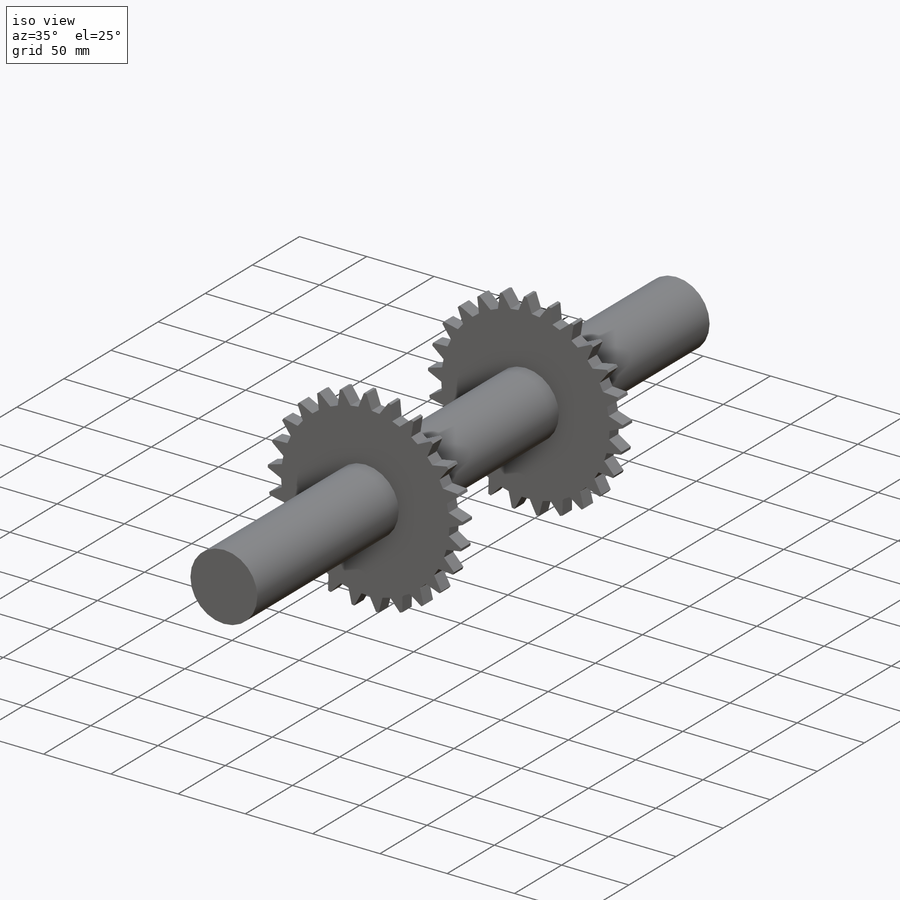
[diagram: iso view]
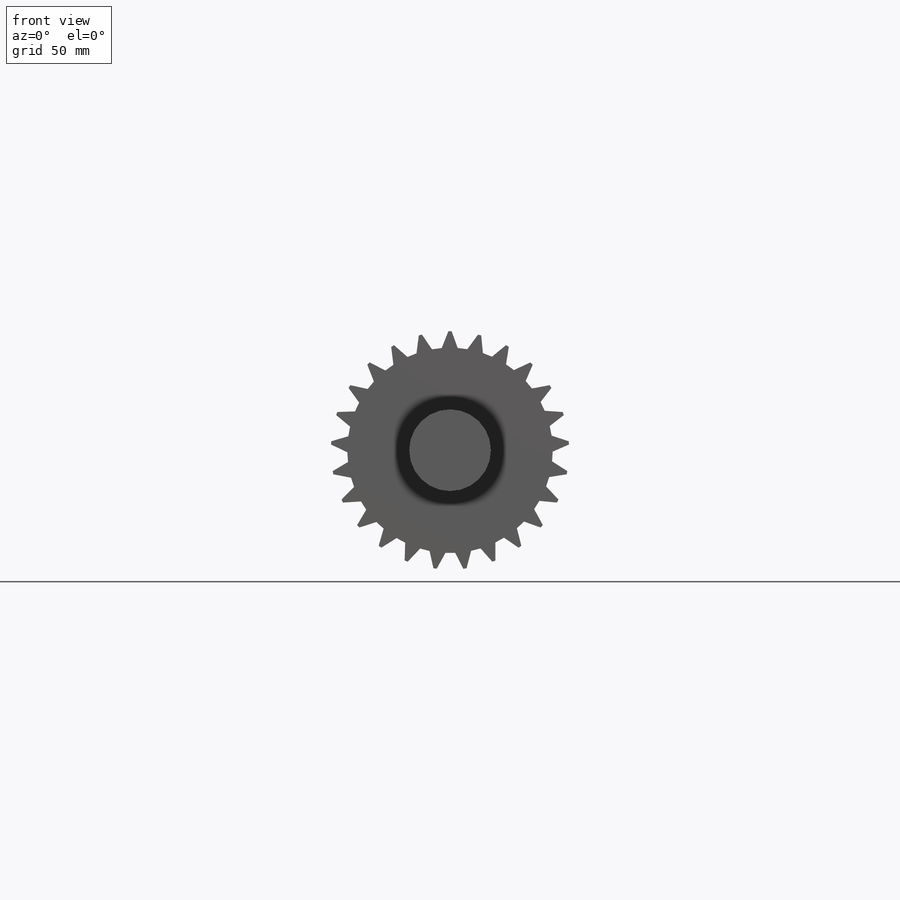
[diagram: front view]
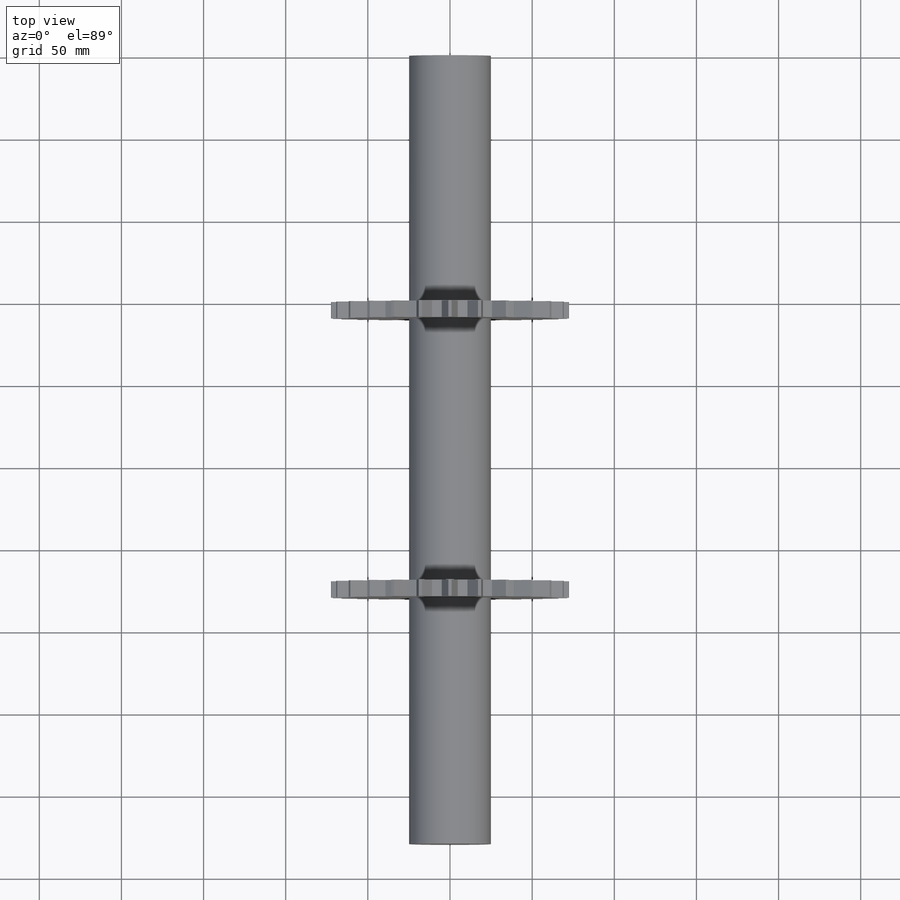
[diagram: top view]
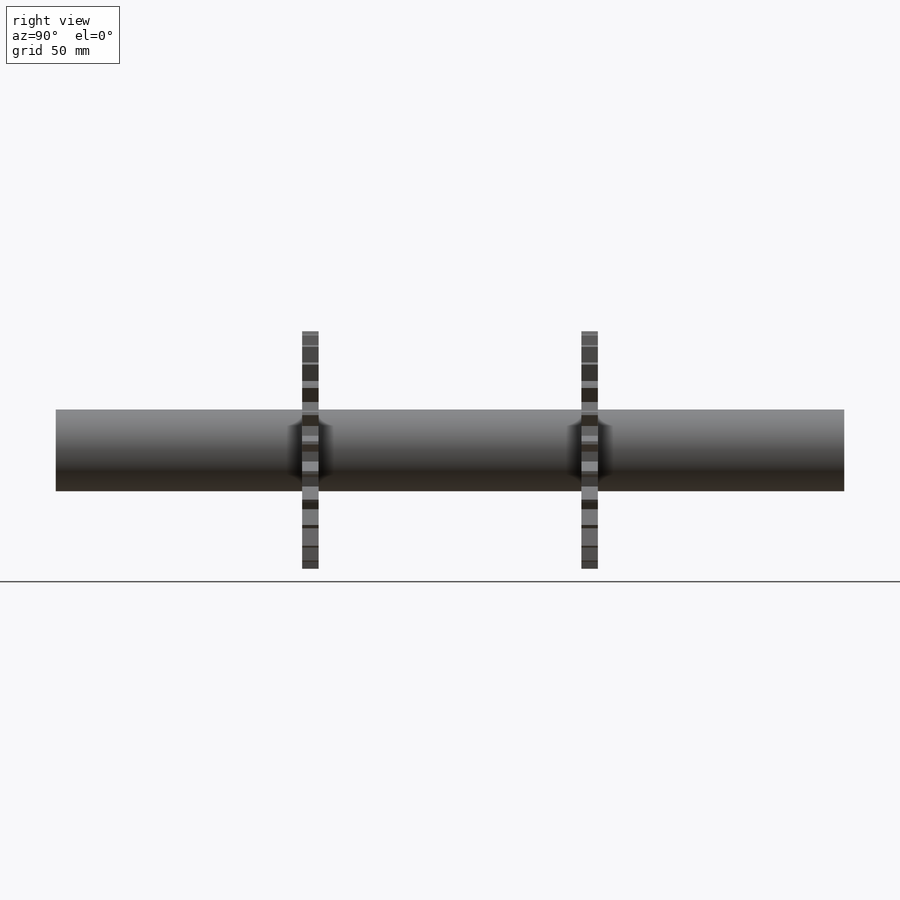
[diagram: right view]
SOLIDWORKS PART (.sldprt)
format: sldprt  version: not decoded by parser v0  size: 334,336 bytes
history: native  units: mm
features: sketch x3, extrude x3, plane x2, material x1, pattern_circular x1, mirror x1 (+13 scaffold rows collapsed)
feature tree (24):
  scaffold x13  (default folders/planes/origin — collapsed)
  material  "Material <not specified>"
  sketch  "Sketch1"  dims[D1=49.75mm]
  extrude  "Boss-Extrude1"  Depth=480mm
  plane  "Plane1"  Offset=150mm
  sketch  "Sketch2"  dims[D1=125.0mm D2=100.0mm]
  extrude  "Boss-Extrude2"  Depth=10mm
  sketch  "Sketch4"  dims[c1.D1=10.0mm c1.D2=20.0mm c1.D3=4.0mm c1.D4=4.0mm c1.D5=10.0mm c2.D2=1.0mm c2.D3=5.0mm c2.D4=1.0mm c2.D5=52.5mm c2.D6=~61.442173mm c2.D7=62.5mm c2.D8=72.5mm c3.D5=52.5mm]
  extrude  "Boss-Extrude3"  Depth=10mm
  pattern_circular  "CirPattern2"  Count=25 Angle=360deg
  plane  "Plane2"  Offset=240mm
  mirror  "Mirror1"
decode coverage: 7 of 8 modeling features carry decoded parameters
note: ~ marks probable driven/reference dimensions
note: suppression state not decoded; provenance and decode notes live in map.json
